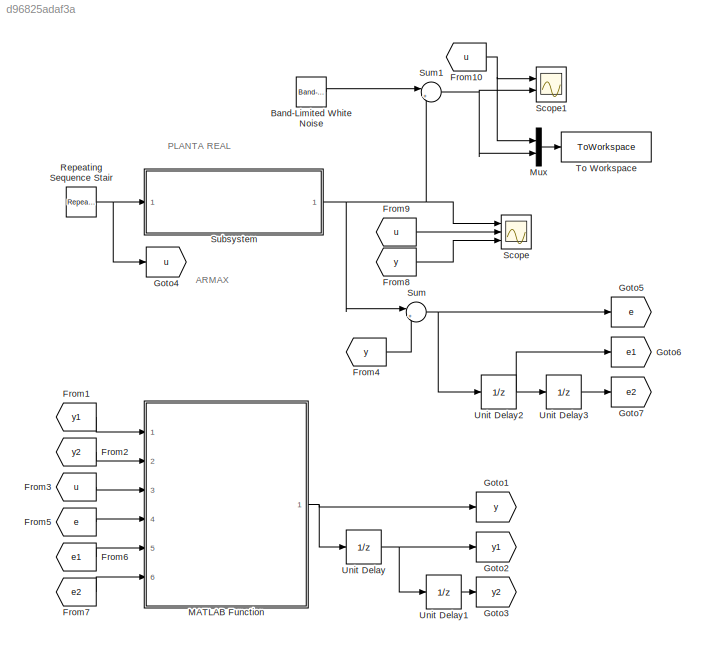
MODEL slx_d96825adaf3a
KIND model
CONFIG AbsTol = auto
CONFIG EnableMultiTasking = off
CONFIG FixedStep = 0.01
CONFIG MaxStep = auto
CONFIG MinStep = auto
CONFIG RelTol = 1e-3
CONFIG SampleTimeConstraint = Unconstrained
CONFIG Solver = FixedStepAuto
CONFIG SolverName = FixedStepAuto
CONFIG StartTime = 0.0
CONFIG StopTime = 100
BLOCK [Reference] Band-Limited White Noise  REF=simulink/Sources/Band-Limited
White Noise
  Ports = [0, 1]
  SourceBlock = simulink/Sources/Band-Limited\nWhite Noise
  SourceProductBaseCode = SL
  SourceType = Band-Limited White Noise.
BLOCK [From] From1
  GotoTag = y1
BLOCK [From] From10
  GotoTag = u
BLOCK [From] From2
  GotoTag = y2
BLOCK [From] From3
  GotoTag = u
BLOCK [From] From4
  GotoTag = y
BLOCK [From] From5
  GotoTag = e
BLOCK [From] From6
  GotoTag = e1
BLOCK [From] From7
  GotoTag = e2
BLOCK [From] From8
  GotoTag = y
BLOCK [From] From9
  GotoTag = u
BLOCK [Goto] Goto1
  GotoTag = y
BLOCK [Goto] Goto2
  GotoTag = y1
BLOCK [Goto] Goto3
  GotoTag = y2
BLOCK [Goto] Goto4
  GotoTag = u
BLOCK [Goto] Goto5
  GotoTag = e
BLOCK [Goto] Goto6
  GotoTag = e1
BLOCK [Goto] Goto7
  GotoTag = e2
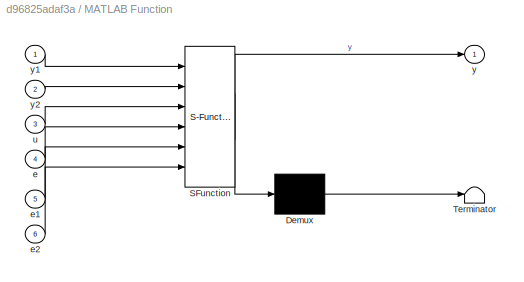
BLOCK [SubSystem] MATLAB Function
  ErrorFcn = Stateflow.Translate.translate
  PermitHierarchicalResolution = ExplicitOnly
  Ports = [6, 1]
  RequestExecContextInheritance = off
  SFBlockType = MATLAB Function
  TreatAsAtomicUnit = on
BLOCK [Demux] MATLAB Function/ Demux 
  Outputs = 1
  Ports = [1, 1]
BLOCK [S-Function] MATLAB Function/ SFunction 
  EnableBusSupport = on
  FunctionName = sf_sfun
  PortCounts = [6 2]
  Ports = [6, 2]
  SFcnIsStateOwnerBlock = off
  SFunctionDeploymentMode = off
  Tag = Stateflow S-Function 2
BLOCK [Terminator] MATLAB Function/ Terminator 
BLOCK [Inport] MATLAB Function/e
  Port = 4
BLOCK [Inport] MATLAB Function/e1
  Port = 5
BLOCK [Inport] MATLAB Function/e2
  Port = 6
BLOCK [Inport] MATLAB Function/u
  Port = 3
BLOCK [Outport] MATLAB Function/y
BLOCK [Inport] MATLAB Function/y1
BLOCK [Inport] MATLAB Function/y2
  Port = 2
BLOCK [Mux] Mux
  DisplayOption = bar
  Inputs = 2
  Ports = [2, 1]
BLOCK [Reference] Repeating Sequence Stair  REF=simulink/Sources/Repeating
Sequence
Stair
  Ports = [0, 1]
  SourceBlock = simulink/Sources/Repeating\nSequence\nStair
  SourceProductBaseCode = SL
  SourceType = Repeating Sequence Stair
BLOCK [Scope] Scope
  Floating = off
  NumInputPorts = 3
  Ports = [3]
  ScopeSpecificationString = Simulink.scopes.TimeScopeBlockCfg('CurrentConfiguration', extmgr.ConfigurationSet(extmgr.Configuration('Core','General UI',true),extmgr.Configuration('Core','Source UI',true),extmgr.Configuration('Sources','WiredSimulink',true),extmgr.Configuration('Visuals','Time Domain',true,'SerializedDisplays',{struct('MinYLimReal','-0.30654','MaxYLimReal','1.54859','YLabelReal','','MinYLimMag','0.00000','MaxY...<+1439ch>
BLOCK [Scope] Scope1
  Floating = off
  NumInputPorts = 2
  Ports = [2]
  ScopeSpecificationString = Simulink.scopes.TimeScopeBlockCfg('CurrentConfiguration', extmgr.ConfigurationSet(extmgr.Configuration('Core','General UI',true),extmgr.Configuration('Core','Source UI',true),extmgr.Configuration('Sources','WiredSimulink',true,'DataLoggingVariableName','ST_02','DataLoggingSaveFormat','Array'),extmgr.Configuration('Visuals','Time Domain',true,'SerializedDisplays',{struct('MinYLimReal','-0.70699','M...<+1494ch>
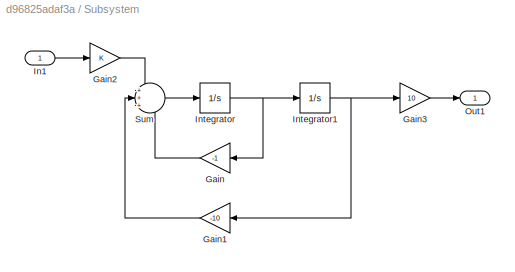
BLOCK [SubSystem] Subsystem
  Ports = [1, 1]
  RequestExecContextInheritance = off
BLOCK [Gain] Subsystem/Gain
  Gain = -1
  NameLocation = top
BLOCK [Gain] Subsystem/Gain1
  Gain = -10
  NameLocation = top
BLOCK [Gain] Subsystem/Gain2
BLOCK [Gain] Subsystem/Gain3
  Gain = 10
BLOCK [Inport] Subsystem/In1
BLOCK [Integrator] Subsystem/Integrator
  Ports = [1, 1]
BLOCK [Integrator] Subsystem/Integrator1
  Ports = [1, 1]
BLOCK [Outport] Subsystem/Out1
  VectorParamsAs1DForOutWhenUnconnected = off
BLOCK [Sum] Subsystem/Sum
  Inputs = +++
  Ports = [3, 1]
BLOCK [Sum] Sum
  Inputs = |+-
  Ports = [2, 1]
BLOCK [Sum] Sum1
  Inputs = |++
  Ports = [2, 1]
BLOCK [ToWorkspace] To Workspace
  FixptAsFi = on
  MaxDataPoints = inf
  Ports = [1]
  SampleTime = -1
  Save2DSignal = 2-D array (concatenate along first dimension)
  VariableName = ST_02
BLOCK [UnitDelay] Unit Delay
  HasFrameUpgradeWarning = on
  SampleTime = -1
BLOCK [UnitDelay] Unit Delay1
  HasFrameUpgradeWarning = on
  SampleTime = -1
BLOCK [UnitDelay] Unit Delay2
  HasFrameUpgradeWarning = on
  SampleTime = -1
BLOCK [UnitDelay] Unit Delay3
  HasFrameUpgradeWarning = on
  SampleTime = -1
ANNOTATION (root): ARMAX
ANNOTATION (root): PLANTA REAL
LINE Band-Limited White Noise:1 -> Sum1:1
NET From10:1 -> Mux:1, Scope1:1
LINE From1:1 -> MATLAB Function:1
LINE From2:1 -> MATLAB Function:2
LINE From3:1 -> MATLAB Function:3
LINE From4:1 -> Sum:2
LINE From5:1 -> MATLAB Function:4
LINE From6:1 -> MATLAB Function:5
LINE From7:1 -> MATLAB Function:6
LINE From8:1 -> Scope:3
LINE From9:1 -> Scope:2
NET MATLAB Function:1 -> Goto1:1, Unit Delay:1
LINE Mux:1 -> To Workspace:1
NET Repeating Sequence Stair:1 -> Goto4:1, Subsystem:1
LINE Subsystem/Gain1:1 -> Subsystem/Sum:2
LINE Subsystem/Gain2:1 -> Subsystem/Sum:1
LINE Subsystem/Gain3:1 -> Subsystem/Out1:1
LINE Subsystem/Gain:1 -> Subsystem/Sum:3
LINE Subsystem/In1:1 -> Subsystem/Gain2:1
NET Subsystem/Integrator1:1 -> Subsystem/Gain1:1, Subsystem/Gain3:1
NET Subsystem/Integrator:1 -> Subsystem/Gain:1, Subsystem/Integrator1:1
LINE Subsystem/Sum:1 -> Subsystem/Integrator:1
NET Subsystem:1 -> Scope:1, Sum1:2, Sum:1
NET Sum1:1 -> Mux:2, Scope1:2
NET Sum:1 -> Goto5:1, Unit Delay2:1
LINE Unit Delay1:1 -> Goto3:1
NET Unit Delay2:1 -> Goto6:1, Unit Delay3:1
LINE Unit Delay3:1 -> Goto7:1
NET Unit Delay:1 -> Goto2:1, Unit Delay1:1
note: NET lines group one-source signal fan-out (src -> all destinations, sorted); 1:1 wires keep LINE
CHART MATLAB Function states=1 transitions=1
  STATE_LABEL 'eML_blk_kernel()'
  STATE_LABEL 'SCRIPT:\nfunction y = fcn(y1,y2,u,e,e1,e2)\n\na1 = 1.989;\na2 = -0.99;\na3 = 0.0009799;\na4 = -1.967;\na5 = 0.9681;\n\ny = a1*y1 + a2*y2 + a3*u + e + a4*e1 + a5*e2;\n'
CHART  states=0 transitions=0
